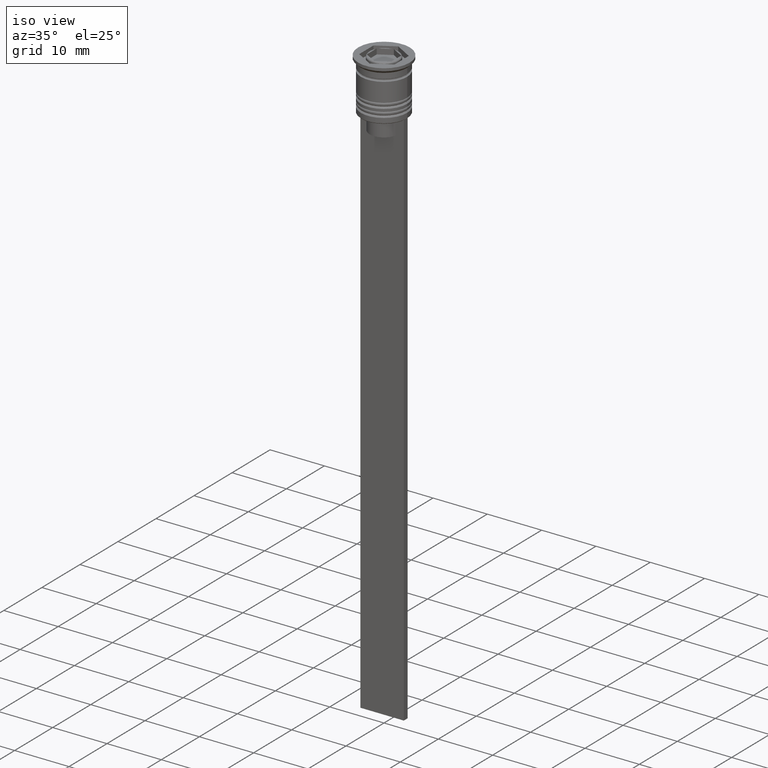
[diagram: clean part render]
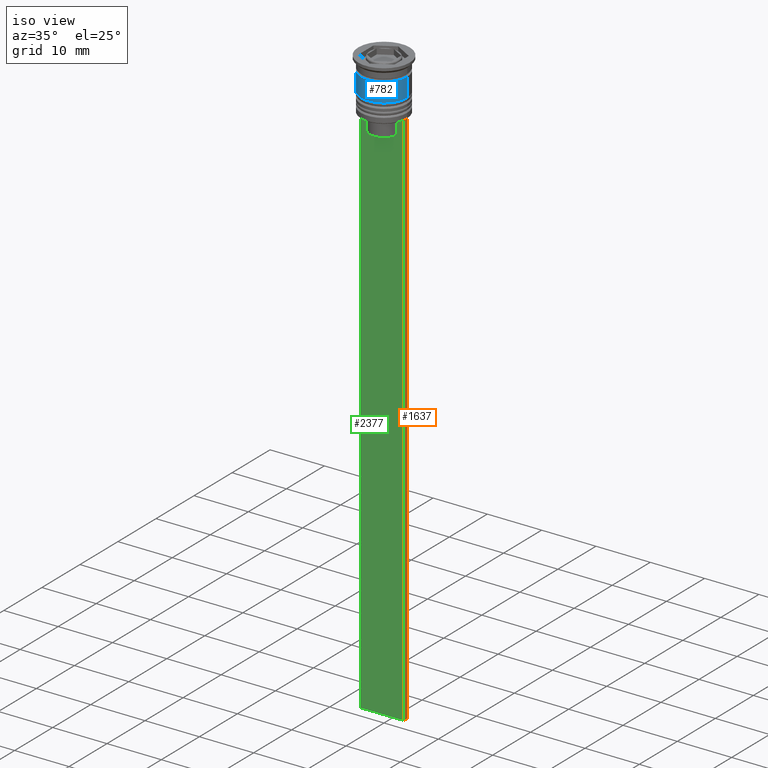
[diagram: same view with three faces highlighted in distinct colors, each labeled with its STEP entity id]
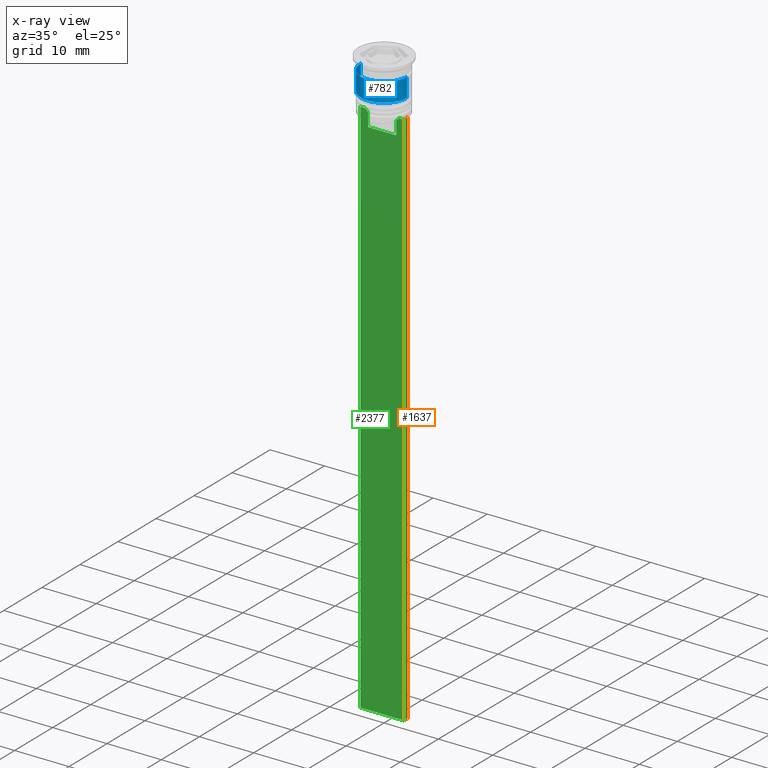
[diagram: x-ray of the same camera — body ghosted, the three highlighted faces saturated]
A machine part, iso view with three faces highlighted in distinct colors.
The next image is the same camera in x-ray (body ghosted, the three faces saturated) — at least one of them is partly hidden behind the body in this view.
Their STEP definitions:

[orange] entity #1637 — the highlighted planar face has unit normal (-1, 0, 0).
#5 = ORIENTED_EDGE ( 'NONE', *, *, #2275, .T. ) ;
#44 = DIRECTION ( 'NONE',  ( 0.000000000000000000, 0.000000000000000000, 1.000000000000000000 ) ) ;
#46 = EDGE_LOOP ( 'NONE', ( #906, #1515, #1757, #5 ) ) ;
#164 = VERTEX_POINT ( 'NONE', #288 ) ;
#205 = DIRECTION ( 'NONE',  ( 0.000000000000000000, -1.000000000000000000, 0.000000000000000000 ) ) ;
#271 = CARTESIAN_POINT ( 'NONE',  ( 4.000000000000005329, -0.5000000000000004441, -1.437742251701450202 ) ) ;
#288 = CARTESIAN_POINT ( 'NONE',  ( 4.000000000000005329, 0.4999999999999995559, -9.500000000000000000 ) ) ;
#370 = VECTOR ( 'NONE', #681, 1000.000000000000000 ) ;
#489 = CARTESIAN_POINT ( 'NONE',  ( 4.000000000000005329, 0.4999999999999995559, -1.437742251701450202 ) ) ;
#552 = LINE ( 'NONE', #1479, #1461 ) ;
#569 = CARTESIAN_POINT ( 'NONE',  ( 4.000000000000005329, -0.5000000000000004441, -1.437742251701450202 ) ) ;
#571 = AXIS2_PLACEMENT_3D ( 'NONE', #569, #995, #44 ) ;
#583 = FACE_OUTER_BOUND ( 'NONE', #46, .T. ) ;
#681 = DIRECTION ( 'NONE',  ( 0.000000000000000000, 0.000000000000000000, -1.000000000000000000 ) ) ;
#829 = EDGE_CURVE ( 'NONE', #164, #1820, #1609, .T. ) ;
#833 = DIRECTION ( 'NONE',  ( 0.000000000000000000, 0.000000000000000000, -1.000000000000000000 ) ) ;
#906 = ORIENTED_EDGE ( 'NONE', *, *, #829, .F. ) ;
#995 = DIRECTION ( 'NONE',  ( -1.000000000000000000, 0.000000000000000000, 0.000000000000000000 ) ) ;
#1025 = CARTESIAN_POINT ( 'NONE',  ( 4.000000000000005329, -0.5000000000000004441, -109.5000000000000000 ) ) ;
#1104 = CARTESIAN_POINT ( 'NONE',  ( 4.000000000000005329, -0.5000000000000004441, -109.5000000000000000 ) ) ;
#1164 = VECTOR ( 'NONE', #833, 1000.000000000000000 ) ;
#1388 = LINE ( 'NONE', #1025, #2205 ) ;
#1416 = CARTESIAN_POINT ( 'NONE',  ( 4.000000000000005329, -0.5000000000000004441, -9.500000000000000000 ) ) ;
#1439 = EDGE_CURVE ( 'NONE', #164, #2229, #552, .T. ) ;
#1461 = VECTOR ( 'NONE', #205, 1000.000000000000000 ) ;
#1479 = CARTESIAN_POINT ( 'NONE',  ( 4.000000000000005329, -0.5000000000000004441, -9.500000000000000000 ) ) ;
#1515 = ORIENTED_EDGE ( 'NONE', *, *, #1439, .T. ) ;
#1609 = LINE ( 'NONE', #489, #370 ) ;
#1637 = ADVANCED_FACE ( 'NONE', ( #583 ), #2277, .F. ) ;
#1736 = LINE ( 'NONE', #271, #1164 ) ;
#1757 = ORIENTED_EDGE ( 'NONE', *, *, #2161, .T. ) ;
#1820 = VERTEX_POINT ( 'NONE', #2193 ) ;
#1862 = VERTEX_POINT ( 'NONE', #1104 ) ;
#2148 = DIRECTION ( 'NONE',  ( 0.000000000000000000, 1.000000000000000000, 0.000000000000000000 ) ) ;
#2161 = EDGE_CURVE ( 'NONE', #2229, #1862, #1736, .T. ) ;
#2193 = CARTESIAN_POINT ( 'NONE',  ( 4.000000000000005329, 0.4999999999999995559, -109.5000000000000000 ) ) ;
#2205 = VECTOR ( 'NONE', #2148, 1000.000000000000000 ) ;
#2229 = VERTEX_POINT ( 'NONE', #1416 ) ;
#2275 = EDGE_CURVE ( 'NONE', #1862, #1820, #1388, .T. ) ;
#2277 = PLANE ( 'NONE',  #571 ) ;

[blue] entity #782 — the highlighted cylindrical surface (edge-blend (fillet) strip) has radius 4.25 mm, axis along (-0, -0, 1).
#10 = CIRCLE ( 'NONE', #1969, 4.250000000000000888 ) ;
#34 = CARTESIAN_POINT ( 'NONE',  ( 0.000000000000000000, 0.000000000000000000, 0.000000000000000000 ) ) ;
#56 = EDGE_CURVE ( 'NONE', #371, #216, #10, .T. ) ;
#113 = VERTEX_POINT ( 'NONE', #1423 ) ;
#216 = VERTEX_POINT ( 'NONE', #1642 ) ;
#235 = CARTESIAN_POINT ( 'NONE',  ( -4.250000000000000888, 5.204748896376251685E-16, -6.000000000000000000 ) ) ;
#270 = AXIS2_PLACEMENT_3D ( 'NONE', #2141, #485, #1224 ) ;
#371 = VERTEX_POINT ( 'NONE', #235 ) ;
#392 = DIRECTION ( 'NONE',  ( -0.000000000000000000, -0.000000000000000000, 1.000000000000000000 ) ) ;
#402 = DIRECTION ( 'NONE',  ( 1.000000000000000000, 0.000000000000000000, 0.000000000000000000 ) ) ;
#452 = AXIS2_PLACEMENT_3D ( 'NONE', #34, #392, #402 ) ;
#485 = DIRECTION ( 'NONE',  ( -0.000000000000000000, -0.000000000000000000, 1.000000000000000000 ) ) ;
#606 = CARTESIAN_POINT ( 'NONE',  ( 4.250000000000000000, 0.000000000000000000, -2.500000000000000000 ) ) ;
#782 = ADVANCED_FACE ( 'NONE', ( #2233 ), #2046, .T. ) ;
#948 = ORIENTED_EDGE ( 'NONE', *, *, #56, .T. ) ;
#956 = VECTOR ( 'NONE', #2094, 1000.000000000000000 ) ;
#1039 = CIRCLE ( 'NONE', #270, 4.250000000000000000 ) ;
#1132 = LINE ( 'NONE', #1313, #956 ) ;
#1167 = LINE ( 'NONE', #2092, #2273 ) ;
#1173 = EDGE_LOOP ( 'NONE', ( #1832, #948, #2181, #1184 ) ) ;
#1178 = DIRECTION ( 'NONE',  ( -0.000000000000000000, -0.000000000000000000, 1.000000000000000000 ) ) ;
#1184 = ORIENTED_EDGE ( 'NONE', *, *, #1371, .F. ) ;
#1224 = DIRECTION ( 'NONE',  ( 1.000000000000000000, 0.000000000000000000, 0.000000000000000000 ) ) ;
#1244 = DIRECTION ( 'NONE',  ( 1.000000000000000000, 0.000000000000000000, 0.000000000000000000 ) ) ;
#1250 = EDGE_CURVE ( 'NONE', #216, #1650, #1167, .T. ) ;
#1313 = CARTESIAN_POINT ( 'NONE',  ( -4.250000000000000000, 5.204748896376250699E-16, 0.000000000000000000 ) ) ;
#1371 = EDGE_CURVE ( 'NONE', #113, #1650, #1039, .T. ) ;
#1423 = CARTESIAN_POINT ( 'NONE',  ( -4.250000000000000000, 5.204748896376250699E-16, -2.500000000000000000 ) ) ;
#1573 = DIRECTION ( 'NONE',  ( -0.000000000000000000, -0.000000000000000000, 1.000000000000000000 ) ) ;
#1591 = EDGE_CURVE ( 'NONE', #371, #113, #1132, .T. ) ;
#1642 = CARTESIAN_POINT ( 'NONE',  ( 4.250000000000000888, 0.000000000000000000, -6.000000000000000000 ) ) ;
#1650 = VERTEX_POINT ( 'NONE', #606 ) ;
#1832 = ORIENTED_EDGE ( 'NONE', *, *, #1591, .F. ) ;
#1944 = CARTESIAN_POINT ( 'NONE',  ( 0.000000000000000000, 0.000000000000000000, -6.000000000000000000 ) ) ;
#1969 = AXIS2_PLACEMENT_3D ( 'NONE', #1944, #1573, #1244 ) ;
#2046 = CYLINDRICAL_SURFACE ( 'NONE', #452, 4.250000000000000000 ) ;
#2092 = CARTESIAN_POINT ( 'NONE',  ( 4.250000000000000000, 0.000000000000000000, 0.000000000000000000 ) ) ;
#2094 = DIRECTION ( 'NONE',  ( -0.000000000000000000, -0.000000000000000000, 1.000000000000000000 ) ) ;
#2141 = CARTESIAN_POINT ( 'NONE',  ( 0.000000000000000000, 0.000000000000000000, -2.500000000000000000 ) ) ;
#2181 = ORIENTED_EDGE ( 'NONE', *, *, #1250, .T. ) ;
#2233 = FACE_OUTER_BOUND ( 'NONE', #1173, .T. ) ;
#2273 = VECTOR ( 'NONE', #1178, 1000.000000000000000 ) ;

[green] entity #2377 — the highlighted planar face has unit normal (0, -1, -0).
#28 = CARTESIAN_POINT ( 'NONE',  ( 2.602402735934616906, -0.5000000000000004441, -10.00000000000000178 ) ) ;
#29 = VECTOR ( 'NONE', #1680, 1000.000000000000000 ) ;
#80 = CARTESIAN_POINT ( 'NONE',  ( 4.000000000000005329, -0.5000000000000004441, -9.500000000000000000 ) ) ;
#110 = CARTESIAN_POINT ( 'NONE',  ( -3.110064308016796453, -0.5000000000000004441, -9.500000000000000000 ) ) ;
#116 = DIRECTION ( 'NONE',  ( 1.000000000000000000, 0.000000000000000000, 0.000000000000000000 ) ) ;
#140 = ORIENTED_EDGE ( 'NONE', *, *, #1990, .F. ) ;
#236 = AXIS2_PLACEMENT_3D ( 'NONE', #1246, #1935, #842 ) ;
#271 = CARTESIAN_POINT ( 'NONE',  ( 4.000000000000005329, -0.5000000000000004441, -1.437742251701450202 ) ) ;
#312 = CARTESIAN_POINT ( 'NONE',  ( -2.602402735934616906, -0.5000000000000004441, -10.00000000000000178 ) ) ;
#323 = FACE_OUTER_BOUND ( 'NONE', #764, .T. ) ;
#420 = VECTOR ( 'NONE', #116, 1000.000000000000000 ) ;
#494 = CARTESIAN_POINT ( 'NONE',  ( -2.771866350855961336, -0.5000000000000004441, -9.833580160334840059 ) ) ;
#504 = PLANE ( 'NONE',  #236 ) ;
#512 = B_SPLINE_CURVE_WITH_KNOTS ( 'NONE', 3,
 ( #110, #2305, #494, #312 ),
 .UNSPECIFIED., .F., .F.,
 ( 4, 4 ),
 ( 0.005378271293598281544, 0.006090816219556000749 ),
 .UNSPECIFIED. ) ;
#573 = CARTESIAN_POINT ( 'NONE',  ( 3.110064308016796453, -0.5000000000000004441, -9.500000000000000000 ) ) ;
#576 = VECTOR ( 'NONE', #1893, 1000.000000000000000 ) ;
#585 = ORIENTED_EDGE ( 'NONE', *, *, #678, .F. ) ;
#601 = LINE ( 'NONE', #1519, #576 ) ;
#610 = CARTESIAN_POINT ( 'NONE',  ( 2.941045828809988549, -0.5000000000000004441, -9.666875663357577864 ) ) ;
#628 = ORIENTED_EDGE ( 'NONE', *, *, #2353, .F. ) ;
#641 = LINE ( 'NONE', #1723, #766 ) ;
#647 = VERTEX_POINT ( 'NONE', #2188 ) ;
#659 = VECTOR ( 'NONE', #848, 1000.000000000000000 ) ;
#660 = CARTESIAN_POINT ( 'NONE',  ( 2.602402735934616906, -0.5000000000000004441, -12.50000000000000000 ) ) ;
#678 = EDGE_CURVE ( 'NONE', #2087, #2278, #746, .T. ) ;
#680 = CARTESIAN_POINT ( 'NONE',  ( -3.110064308016796453, -0.5000000000000004441, -9.500000000000000000 ) ) ;
#746 = LINE ( 'NONE', #1327, #29 ) ;
#764 = EDGE_LOOP ( 'NONE', ( #628, #790, #2090, #1296, #2111, #1137, #1057, #1940, #585, #140 ) ) ;
#765 = EDGE_CURVE ( 'NONE', #1066, #2077, #2084, .T. ) ;
#766 = VECTOR ( 'NONE', #1520, 1000.000000000000000 ) ;
#790 = ORIENTED_EDGE ( 'NONE', *, *, #2177, .F. ) ;
#792 = CARTESIAN_POINT ( 'NONE',  ( 2.602402735934616906, -0.5000000000000004441, -10.00000000000000178 ) ) ;
#833 = DIRECTION ( 'NONE',  ( 0.000000000000000000, 0.000000000000000000, -1.000000000000000000 ) ) ;
#842 = DIRECTION ( 'NONE',  ( 0.000000000000000000, 0.000000000000000000, -1.000000000000000000 ) ) ;
#848 = DIRECTION ( 'NONE',  ( 1.000000000000000000, 0.000000000000000000, 0.000000000000000000 ) ) ;
#863 = EDGE_CURVE ( 'NONE', #2211, #647, #999, .T. ) ;
#879 = CARTESIAN_POINT ( 'NONE',  ( -3.999999999999994671, -0.5000000000000004441, -1.437742251701450202 ) ) ;
#916 = VECTOR ( 'NONE', #1432, 1000.000000000000000 ) ;
#992 = CARTESIAN_POINT ( 'NONE',  ( -2.602402735934616906, -0.5000000000000004441, -12.50000000000000000 ) ) ;
#999 = LINE ( 'NONE', #879, #916 ) ;
#1004 = LINE ( 'NONE', #2310, #659 ) ;
#1057 = ORIENTED_EDGE ( 'NONE', *, *, #765, .F. ) ;
#1058 = LINE ( 'NONE', #1982, #1618 ) ;
#1066 = VERTEX_POINT ( 'NONE', #28 ) ;
#1104 = CARTESIAN_POINT ( 'NONE',  ( 4.000000000000005329, -0.5000000000000004441, -109.5000000000000000 ) ) ;
#1137 = ORIENTED_EDGE ( 'NONE', *, *, #2112, .F. ) ;
#1164 = VECTOR ( 'NONE', #833, 1000.000000000000000 ) ;
#1233 = EDGE_CURVE ( 'NONE', #2278, #1066, #641, .T. ) ;
#1246 = CARTESIAN_POINT ( 'NONE',  ( 4.000000000000005329, -0.5000000000000004441, -1.437742251701450202 ) ) ;
#1296 = ORIENTED_EDGE ( 'NONE', *, *, #1931, .F. ) ;
#1327 = CARTESIAN_POINT ( 'NONE',  ( 0.000000000000000000, -0.5000000000000004441, -12.50000000000000000 ) ) ;
#1337 = CARTESIAN_POINT ( 'NONE',  ( 2.771864055700302476, -0.5000000000000004441, -9.833582414266679450 ) ) ;
#1416 = CARTESIAN_POINT ( 'NONE',  ( 4.000000000000005329, -0.5000000000000004441, -9.500000000000000000 ) ) ;
#1432 = DIRECTION ( 'NONE',  ( 0.000000000000000000, 0.000000000000000000, -1.000000000000000000 ) ) ;
#1519 = CARTESIAN_POINT ( 'NONE',  ( -2.602402735934616906, -0.5000000000000004441, 0.000000000000000000 ) ) ;
#1520 = DIRECTION ( 'NONE',  ( -0.000000000000000000, -0.000000000000000000, 1.000000000000000000 ) ) ;
#1612 = CARTESIAN_POINT ( 'NONE',  ( -2.602402735934616906, -0.5000000000000004441, -10.00000000000000178 ) ) ;
#1618 = VECTOR ( 'NONE', #2362, 1000.000000000000000 ) ;
#1678 = VERTEX_POINT ( 'NONE', #680 ) ;
#1680 = DIRECTION ( 'NONE',  ( 1.000000000000000000, 0.000000000000000000, 0.000000000000000000 ) ) ;
#1723 = CARTESIAN_POINT ( 'NONE',  ( 2.602402735934616906, -0.5000000000000004441, 0.000000000000000000 ) ) ;
#1736 = LINE ( 'NONE', #271, #1164 ) ;
#1762 = CARTESIAN_POINT ( 'NONE',  ( 3.110064308016796453, -0.5000000000000004441, -9.500000000000000000 ) ) ;
#1862 = VERTEX_POINT ( 'NONE', #1104 ) ;
#1893 = DIRECTION ( 'NONE',  ( 0.000000000000000000, 0.000000000000000000, -1.000000000000000000 ) ) ;
#1931 = EDGE_CURVE ( 'NONE', #1862, #647, #1058, .T. ) ;
#1935 = DIRECTION ( 'NONE',  ( 0.000000000000000000, -1.000000000000000000, -0.000000000000000000 ) ) ;
#1940 = ORIENTED_EDGE ( 'NONE', *, *, #1233, .F. ) ;
#1982 = CARTESIAN_POINT ( 'NONE',  ( 4.000000000000005329, -0.5000000000000004441, -109.5000000000000000 ) ) ;
#1990 = EDGE_CURVE ( 'NONE', #2261, #2087, #601, .T. ) ;
#2077 = VERTEX_POINT ( 'NONE', #1762 ) ;
#2084 = B_SPLINE_CURVE_WITH_KNOTS ( 'NONE', 3,
 ( #792, #1337, #610, #573 ),
 .UNSPECIFIED., .F., .F.,
 ( 4, 4 ),
 ( 0.01295151922336847811, 0.01367164596165162602 ),
 .UNSPECIFIED. ) ;
#2087 = VERTEX_POINT ( 'NONE', #992 ) ;
#2090 = ORIENTED_EDGE ( 'NONE', *, *, #863, .T. ) ;
#2102 = CARTESIAN_POINT ( 'NONE',  ( -3.999999999999994671, -0.5000000000000004441, -9.500000000000000000 ) ) ;
#2111 = ORIENTED_EDGE ( 'NONE', *, *, #2161, .F. ) ;
#2112 = EDGE_CURVE ( 'NONE', #2077, #2229, #2288, .T. ) ;
#2161 = EDGE_CURVE ( 'NONE', #2229, #1862, #1736, .T. ) ;
#2177 = EDGE_CURVE ( 'NONE', #2211, #1678, #1004, .T. ) ;
#2188 = CARTESIAN_POINT ( 'NONE',  ( -3.999999999999994671, -0.5000000000000004441, -109.5000000000000000 ) ) ;
#2211 = VERTEX_POINT ( 'NONE', #2102 ) ;
#2229 = VERTEX_POINT ( 'NONE', #1416 ) ;
#2261 = VERTEX_POINT ( 'NONE', #1612 ) ;
#2278 = VERTEX_POINT ( 'NONE', #660 ) ;
#2288 = LINE ( 'NONE', #80, #420 ) ;
#2305 = CARTESIAN_POINT ( 'NONE',  ( -2.941047749529104749, -0.5000000000000004441, -9.666873766989334982 ) ) ;
#2310 = CARTESIAN_POINT ( 'NONE',  ( 4.000000000000005329, -0.5000000000000004441, -9.500000000000000000 ) ) ;
#2353 = EDGE_CURVE ( 'NONE', #1678, #2261, #512, .T. ) ;
#2362 = DIRECTION ( 'NONE',  ( -1.000000000000000000, 0.000000000000000000, 0.000000000000000000 ) ) ;
#2377 = ADVANCED_FACE ( 'NONE', ( #323 ), #504, .T. ) ;